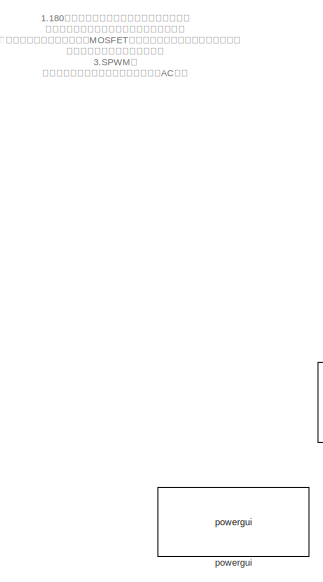
[diagram: root canvas - part 1/2, left side, full height]
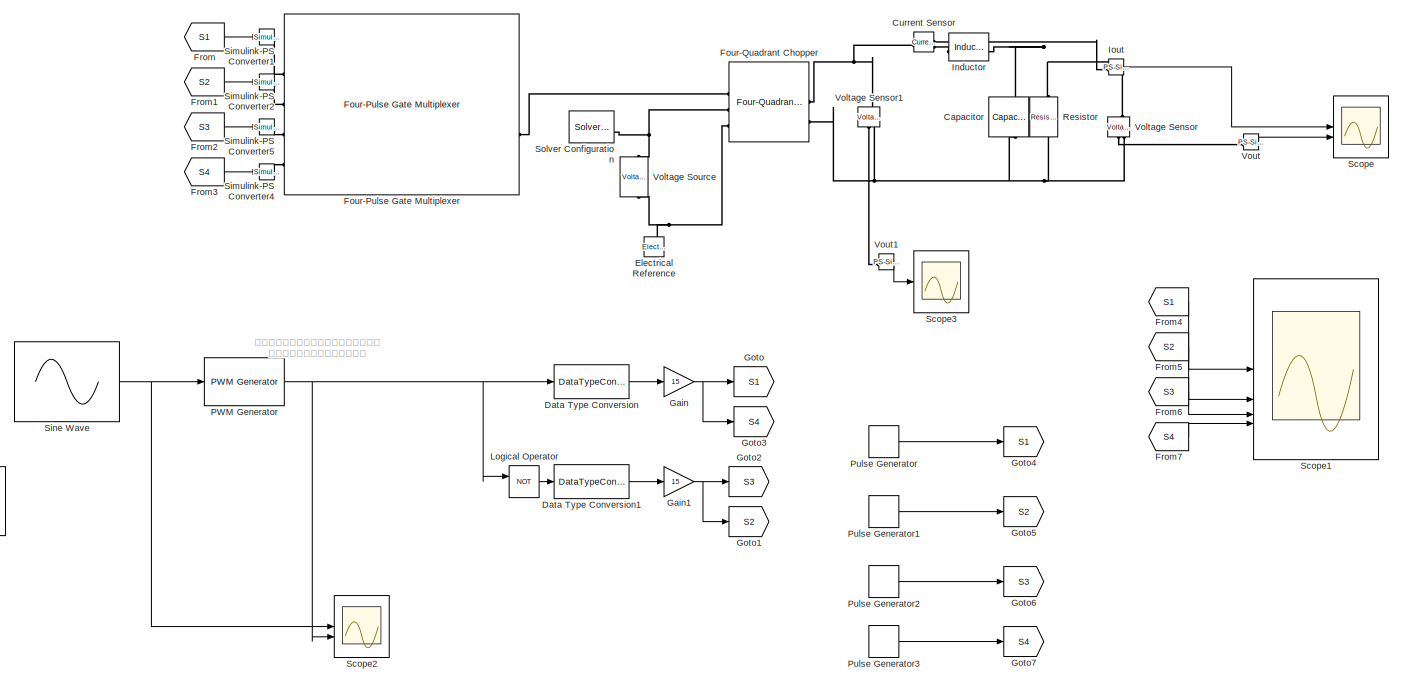
[diagram: root canvas - part 2/2, most of the canvas]
MODEL slx_35034e2fad96
KIND model
CONFIG AbsTol = 1e-3
CONFIG EnableMultiTasking = off
CONFIG FixedStep = auto
CONFIG MaxStep = auto
CONFIG MinStep = auto
CONFIG RelTol = 1e-3
CONFIG SampleTimeConstraint = Unconstrained
CONFIG SolverName = VariableStepAuto
CONFIG StartTime = 0.0
CONFIG StopTime = 0.05
BLOCK [Reference] Capacitor  REF=fl_lib/Electrical/Electrical Elements/Capacitor
  NameLocation = left
  SourceBlock = fl_lib/Electrical/Electrical Elements/Capacitor
  SourceType = Capacitor
BLOCK [Reference] Current Sensor  REF=fl_lib/Electrical/Electrical Sensors/Current Sensor
  SourceBlock = fl_lib/Electrical/Electrical Sensors/Current Sensor
  SourceType = Current Sensor
BLOCK [DataTypeConversion] Data Type Conversion
  RndMeth = Floor
  SaturateOnIntegerOverflow = off
BLOCK [DataTypeConversion] Data Type Conversion1
  RndMeth = Floor
  SaturateOnIntegerOverflow = off
BLOCK [Reference] Electrical Reference  REF=fl_lib/Electrical/Electrical Elements/Electrical Reference
  NameLocation = right
  SourceBlock = fl_lib/Electrical/Electrical Elements/Electrical Reference
  SourceType = Electrical Reference
BLOCK [Reference] Four-Pulse Gate Multiplexer  REF=ee_lib/Semiconductors &
Converters/Converters/Four-Pulse Gate
Multiplexer
  SourceBlock = ee_lib/Semiconductors &\nConverters/Converters/Four-Pulse Gate\nMultiplexer
  SourceType = Four-Pulse Gate\nMultiplexer
BLOCK [Reference] Four-Quadrant Chopper  REF=ee_lib/Semiconductors &
Converters/Converters/Four-Quadrant
Chopper
  SourceBlock = ee_lib/Semiconductors &\nConverters/Converters/Four-Quadrant\nChopper
  SourceType = Four-Quadrant\nChopper
BLOCK [From] From
  GotoTag = S1
BLOCK [From] From1
  GotoTag = S2
BLOCK [From] From2
  GotoTag = S3
BLOCK [From] From3
  GotoTag = S4
BLOCK [From] From4
  GotoTag = S1
BLOCK [From] From5
  GotoTag = S2
BLOCK [From] From6
  GotoTag = S3
BLOCK [From] From7
  GotoTag = S4
BLOCK [Gain] Gain
  Gain = 15
BLOCK [Gain] Gain1
  Gain = 15
BLOCK [Goto] Goto
  GotoTag = S1
BLOCK [Goto] Goto1
  GotoTag = S2
BLOCK [Goto] Goto2
  GotoTag = S3
BLOCK [Goto] Goto3
  GotoTag = S4
BLOCK [Goto] Goto4
  Commented = on
  GotoTag = S1
BLOCK [Goto] Goto5
  Commented = on
  GotoTag = S2
BLOCK [Goto] Goto6
  Commented = on
  GotoTag = S3
BLOCK [Goto] Goto7
  Commented = on
  GotoTag = S4
BLOCK [Reference] Inductor  REF=ee_lib/Passive/Inductor
  SourceBlock = ee_lib/Passive/Inductor
  SourceType = Inductor
BLOCK [Reference] Iout  REF=nesl_utility/PS-Simulink
Converter
  SourceBlock = nesl_utility/PS-Simulink\nConverter
  SourceType = PS-Simulink\nConverter
BLOCK [Logic] Logical Operator
  AllPortsSameDT = off
  Operator = NOT
  OutDataTypeStr = boolean
BLOCK [Reference] PWM Generator  REF=eePwmGenerator/PWM Generator
  LibrarySourceBlock = ee_sl_lib/Pulse Width\nModulation/PWM Generator
  SourceBlock = eePwmGenerator/PWM Generator
  SourceType = PWM Generator
BLOCK [DiscretePulseGenerator] Pulse Generator
  Amplitude = 15
  Commented = on
  Period = 1/20e3
  PulseType = Time based
  PulseWidth = 50
BLOCK [DiscretePulseGenerator] Pulse Generator1
  Amplitude = 15
  Commented = on
  Period = 1/20e3
  PhaseDelay = 120/360*1/20e3
  PulseType = Time based
  PulseWidth = 50
BLOCK [DiscretePulseGenerator] Pulse Generator2
  Amplitude = 15
  Commented = on
  Period = 1/20e3
  PhaseDelay = 120/360*1/20e3
  PulseType = Time based
  PulseWidth = 50
BLOCK [DiscretePulseGenerator] Pulse Generator3
  Amplitude = 15
  Commented = on
  Period = 1/20e3
  PulseType = Time based
  PulseWidth = 50
BLOCK [Reference] Resistor  REF=fl_lib/Electrical/Electrical Elements/Resistor
  NameLocation = left
  SourceBlock = fl_lib/Electrical/Electrical Elements/Resistor
  SourceType = Resistor
BLOCK [Scope] Scope
  Floating = off
  NumInputPorts = 2
  ScopeSpecificationString = Simulink.scopes.TimeScopeBlockCfg('CurrentConfiguration', extmgr.ConfigurationSet(extmgr.Configuration('Core','General UI',true),extmgr.Configuration('Core','Source UI',true),extmgr.Configuration('Sources','WiredSimulink',true,'DataLogging',true,'DataLoggingSaveFormat','StructureWithTime'),extmgr.Configuration('Visuals','Time Domain',true,'SerializedDisplays',{struct('MinYLimReal','-3.37726','MaxY...<+2433ch>
BLOCK [Scope] Scope1
  Floating = off
  NumInputPorts = 4
  ScopeSpecificationString = Simulink.scopes.TimeScopeBlockCfg('CurrentConfiguration', extmgr.ConfigurationSet(extmgr.Configuration('Core','General UI',true),extmgr.Configuration('Core','Source UI',true),extmgr.Configuration('Sources','WiredSimulink',true,'DataLoggingVariableName','ScopeData1'),extmgr.Configuration('Visuals','Time Domain',true,'SerializedDisplays',{struct('MinYLimReal','-1.875','MaxYLimReal','16.875','YLabelR...<+3505ch>
BLOCK [Scope] Scope2
  Floating = off
  NumInputPorts = 2
  ScopeSpecificationString = Simulink.scopes.TimeScopeBlockCfg('CurrentConfiguration', extmgr.ConfigurationSet(extmgr.Configuration('Core','General UI',true),extmgr.Configuration('Core','Source UI',true),extmgr.Configuration('Sources','WiredSimulink',true,'DataLoggingVariableName','ScopeData2'),extmgr.Configuration('Visuals','Time Domain',true,'SerializedDisplays',{struct('MinYLimReal','-0.0625','MaxYLimReal','1.0625','YLabel...<+2136ch>
BLOCK [Scope] Scope3
  Floating = off
  NumInputPorts = 1
  ScopeSpecificationString = Simulink.scopes.TimeScopeBlockCfg('CurrentConfiguration', extmgr.ConfigurationSet(extmgr.Configuration('Core','General UI',true),extmgr.Configuration('Core','Source UI',true),extmgr.Configuration('Sources','WiredSimulink',true,'DataLogging',true,'DataLoggingSaveFormat','StructureWithTime','DataLoggingVariableName','ScopeData1'),extmgr.Configuration('Visuals','Time Domain',true,'SerializedDisplays'...<+1587ch>
BLOCK [Reference] Simulink-PS Converter1  REF=nesl_utility/Simulink-PS
Converter
  SourceBlock = nesl_utility/Simulink-PS\nConverter
  SourceType = Simulink-PS\nConverter
BLOCK [Reference] Simulink-PS Converter2  REF=nesl_utility/Simulink-PS
Converter
  SourceBlock = nesl_utility/Simulink-PS\nConverter
  SourceType = Simulink-PS\nConverter
BLOCK [Reference] Simulink-PS Converter4  REF=nesl_utility/Simulink-PS
Converter
  SourceBlock = nesl_utility/Simulink-PS\nConverter
  SourceType = Simulink-PS\nConverter
BLOCK [Reference] Simulink-PS Converter5  REF=nesl_utility/Simulink-PS
Converter
  SourceBlock = nesl_utility/Simulink-PS\nConverter
  SourceType = Simulink-PS\nConverter
BLOCK [Sin] Sine Wave
  Amplitude = 0.45
  Bias = 0.5
  Frequency = 50*2*pi
  SampleTime = 0
BLOCK [Reference] Solver Configuration  REF=nesl_utility/Solver
Configuration
  SourceBlock = nesl_utility/Solver\nConfiguration
  SourceType = Solver\nConfiguration
BLOCK [Reference] Voltage Sensor  REF=fl_lib/Electrical/Electrical Sensors/Voltage Sensor
  NameLocation = right
  SourceBlock = fl_lib/Electrical/Electrical Sensors/Voltage Sensor
  SourceType = Voltage Sensor
BLOCK [Reference] Voltage Sensor1  REF=fl_lib/Electrical/Electrical Sensors/Voltage Sensor
  NameLocation = right
  SourceBlock = fl_lib/Electrical/Electrical Sensors/Voltage Sensor
  SourceType = Voltage Sensor
BLOCK [Reference] Voltage Source  REF=ee_lib/Sources/Voltage Source
  SourceBlock = ee_lib/Sources/Voltage Source
  SourceType = Voltage Source
BLOCK [Reference] Vout  REF=nesl_utility/PS-Simulink
Converter
  SourceBlock = nesl_utility/PS-Simulink\nConverter
  SourceType = PS-Simulink\nConverter
BLOCK [Reference] Vout1  REF=nesl_utility/PS-Simulink
Converter
  SourceBlock = nesl_utility/PS-Simulink\nConverter
  SourceType = PS-Simulink\nConverter
BLOCK [Reference] powergui  REF=spspowerguiLib/powergui
  LibrarySourceBlock = sps_lib/powergui
  Priority = 1
  SourceBlock = spspowerguiLib/powergui
  SourceType = PSB option menu block
ANNOTATION (root): 数值型信号转化为浮点数类型并进行增益 对应实际电路中的栅极驱动芯片
ANNOTATION (root): 1. 180度 的对称式导通方式，仅适用于阻性负载 跟正弦波不能说是一点不像，简直是毫不相关 2. 移相 导通，不会瞬间关断四个MOSFET，产生尖峰电压，适用于阻感性负载 稍微像一些了，有阶梯的样子了 3.SPWM波 可以完成高质量的逆变。输出高保真的AC正弦
LINE Data Type Conversion1:1 -> Gain1:1
LINE Data Type Conversion:1 -> Gain:1
LINE From1:1 -> Simulink-PS Converter2:1
LINE From2:1 -> Simulink-PS Converter5:1
LINE From3:1 -> Simulink-PS Converter4:1
LINE From4:1 -> Scope1:1
LINE From5:1 -> Scope1:2
LINE From6:1 -> Scope1:3
LINE From7:1 -> Scope1:4
LINE From:1 -> Simulink-PS Converter1:1
NET Gain1:1 -> Goto1:1, Goto2:1
NET Gain:1 -> Goto3:1, Goto:1
LINE Iout:1 -> Scope:1
LINE Logical Operator:1 -> Data Type Conversion1:1
NET PWM Generator:1 -> Data Type Conversion:1, Logical Operator:1, Scope2:2
LINE Pulse Generator1:1 -> Goto5:1
LINE Pulse Generator2:1 -> Goto6:1
LINE Pulse Generator3:1 -> Goto7:1
LINE Pulse Generator:1 -> Goto4:1
NET Sine Wave:1 -> PWM Generator:1, Scope2:1
LINE Vout1:1 -> Scope3:1
LINE Vout:1 -> Scope:2
PNET net1: Capacitor:LConn1 -- Inductor:RConn1 -- Resistor:LConn1 -- Voltage Sensor:LConn1
PNET net2: Capacitor:RConn1 -- Four-Quadrant Chopper:RConn2 -- Resistor:RConn1 -- Voltage Sensor1:RConn2 -- Voltage Sensor:RConn2
PNET net3: Current Sensor:LConn1 -- Four-Quadrant Chopper:RConn1 -- Voltage Sensor1:LConn1
PLINE Current Sensor:RConn1 -- Iout:LConn1
PLINE Current Sensor:RConn2 -- Inductor:LConn1
PNET net4: Electrical Reference:LConn1 -- Four-Quadrant Chopper:LConn3 -- Voltage Source:RConn1
PLINE Four-Pulse Gate Multiplexer:LConn1 -- Simulink-PS Converter1:RConn1
PLINE Four-Pulse Gate Multiplexer:LConn2 -- Simulink-PS Converter2:RConn1
PLINE Four-Pulse Gate Multiplexer:LConn3 -- Simulink-PS Converter5:RConn1
PLINE Four-Pulse Gate Multiplexer:LConn4 -- Simulink-PS Converter4:RConn1
PLINE Four-Pulse Gate Multiplexer:RConn1 -- Four-Quadrant Chopper:LConn1
PNET net5: Four-Quadrant Chopper:LConn2 -- Solver Configuration:RConn1 -- Voltage Source:LConn1
PLINE Voltage Sensor1:RConn1 -- Vout1:LConn1
PLINE Voltage Sensor:RConn1 -- Vout:LConn1
note: NET lines group one-source signal fan-out (src -> all destinations, sorted); 1:1 wires keep LINE; PNET lines group multi-terminal physical nets as a canonical sorted terminal list (undirected conserving connections); 2-terminal nets keep the pairwise PLINE form
